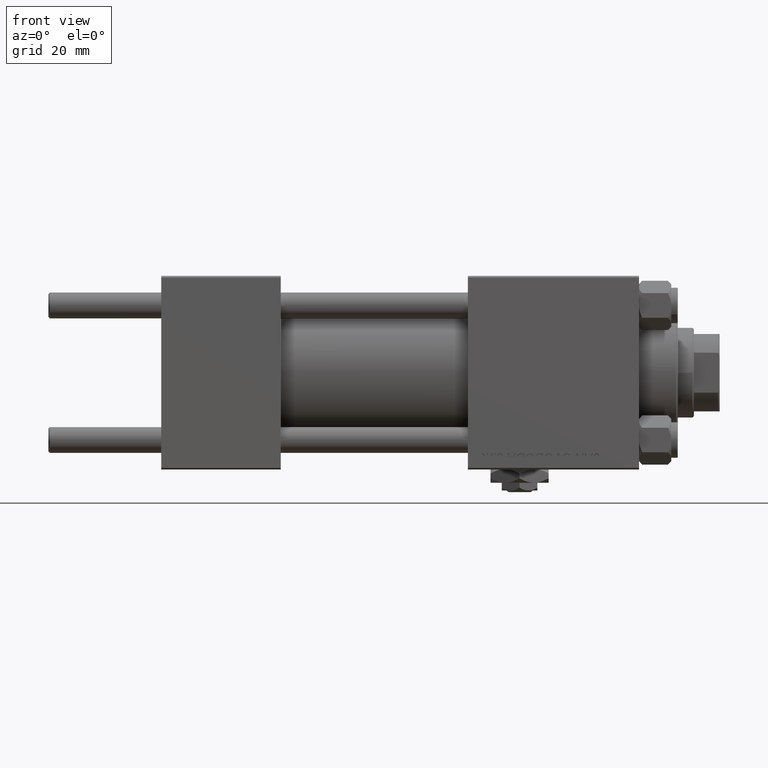
[diagram: clean part render]
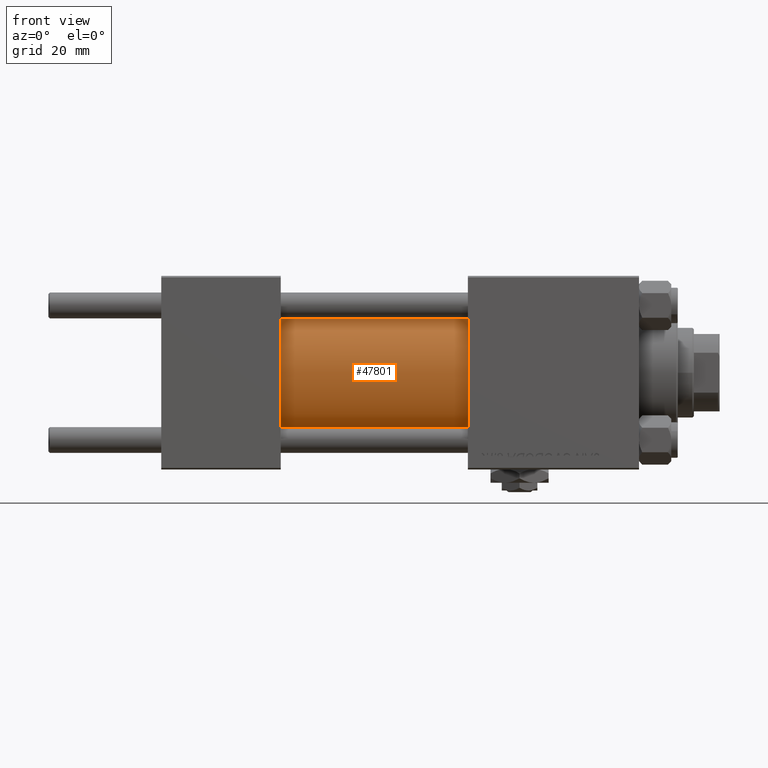
[diagram: same view with one face highlighted and labeled with its STEP entity id]
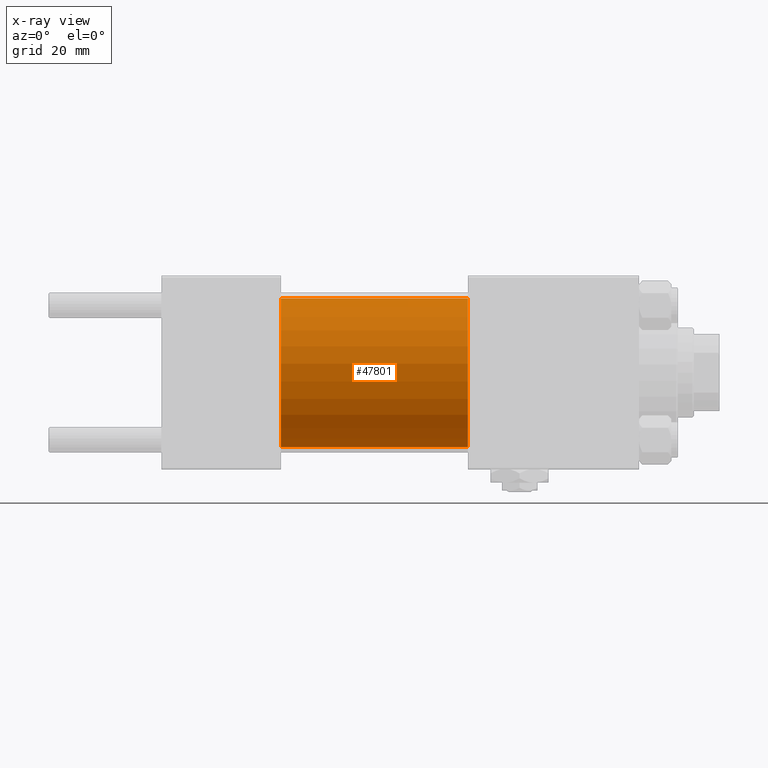
[diagram: x-ray of the same camera — body ghosted, the highlighted face saturated]
A machine part, front view. The second image highlights one B-rep face of the part: STEP entity #47801.
The next image is the same camera in x-ray: the body ghosted, the highlighted face saturated — about 0% of this face is hidden behind the body in this view.
In plain terms, the highlighted cylindrical surface (partial cylindrical patch) has radius 23 mm, axis along (-1, -0, -0).
Its self-contained STEP definition (entity closure, byte-faithful):
#2384 = CYLINDRICAL_SURFACE ( 'NONE', #30726, 23.00000000000000000 ) ;
#2647 = EDGE_LOOP ( 'NONE', ( #41572, #20248, #41165, #35574 ) ) ;
#3155 = DIRECTION ( 'NONE',  ( 0.000000000000000000, 0.000000000000000000, 1.000000000000000000 ) ) ;
#6970 = VERTEX_POINT ( 'NONE', #17798 ) ;
#7068 = DIRECTION ( 'NONE',  ( -1.000000000000000000, -0.000000000000000000, -0.000000000000000000 ) ) ;
#7619 = DIRECTION ( 'NONE',  ( -1.000000000000000000, -0.000000000000000000, -0.000000000000000000 ) ) ;
#8133 = CARTESIAN_POINT ( 'NONE',  ( 95.00000000000000000, 0.000000000000000000, 23.00000000000000000 ) ) ;
#9805 = DIRECTION ( 'NONE',  ( -1.000000000000000000, -0.000000000000000000, -0.000000000000000000 ) ) ;
#10435 = VERTEX_POINT ( 'NONE', #24394 ) ;
#11383 = DIRECTION ( 'NONE',  ( 0.000000000000000000, 0.000000000000000000, -1.000000000000000000 ) ) ;
#12279 = VECTOR ( 'NONE', #9805, 1000.000000000000000 ) ;
#14527 = CIRCLE ( 'NONE', #31970, 23.00000000000000000 ) ;
#15814 = DIRECTION ( 'NONE',  ( 1.000000000000000000, 0.000000000000000000, 0.000000000000000000 ) ) ;
#17798 = CARTESIAN_POINT ( 'NONE',  ( 95.00000000000000000, 2.816687638038911957E-15, -23.00000000000000000 ) ) ;
#18610 = DIRECTION ( 'NONE',  ( 0.000000000000000000, 0.000000000000000000, 1.000000000000000000 ) ) ;
#20248 = ORIENTED_EDGE ( 'NONE', *, *, #31750, .F. ) ;
#21598 = EDGE_CURVE ( 'NONE', #26238, #10435, #43355, .T. ) ;
#23838 = CARTESIAN_POINT ( 'NONE',  ( 37.00000000000000000, 2.816687638038911957E-15, -23.00000000000000000 ) ) ;
#24394 = CARTESIAN_POINT ( 'NONE',  ( 37.00000000000000000, 0.000000000000000000, 23.00000000000000000 ) ) ;
#26238 = VERTEX_POINT ( 'NONE', #37317 ) ;
#26434 = DIRECTION ( 'NONE',  ( 1.000000000000000000, -0.000000000000000000, 0.000000000000000000 ) ) ;
#26895 = FACE_OUTER_BOUND ( 'NONE', #2647, .T. ) ;
#27311 = CIRCLE ( 'NONE', #40646, 23.00000000000000000 ) ;
#29612 = CARTESIAN_POINT ( 'NONE',  ( 95.00000000000000000, 2.816687638038911957E-15, -23.00000000000000000 ) ) ;
#30726 = AXIS2_PLACEMENT_3D ( 'NONE', #42802, #7068, #3155 ) ;
#31750 = EDGE_CURVE ( 'NONE', #26238, #6970, #14527, .T. ) ;
#31970 = AXIS2_PLACEMENT_3D ( 'NONE', #43194, #15814, #11383 ) ;
#32035 = VERTEX_POINT ( 'NONE', #23838 ) ;
#35574 = ORIENTED_EDGE ( 'NONE', *, *, #45545, .T. ) ;
#37317 = CARTESIAN_POINT ( 'NONE',  ( 95.00000000000000000, 0.000000000000000000, 23.00000000000000000 ) ) ;
#37563 = VECTOR ( 'NONE', #7619, 1000.000000000000000 ) ;
#40646 = AXIS2_PLACEMENT_3D ( 'NONE', #50171, #26434, #18610 ) ;
#41165 = ORIENTED_EDGE ( 'NONE', *, *, #21598, .T. ) ;
#41572 = ORIENTED_EDGE ( 'NONE', *, *, #43947, .F. ) ;
#42802 = CARTESIAN_POINT ( 'NONE',  ( 95.00000000000000000, 0.000000000000000000, 0.000000000000000000 ) ) ;
#43194 = CARTESIAN_POINT ( 'NONE',  ( 95.00000000000000000, 0.000000000000000000, 0.000000000000000000 ) ) ;
#43355 = LINE ( 'NONE', #8133, #37563 ) ;
#43947 = EDGE_CURVE ( 'NONE', #6970, #32035, #45011, .T. ) ;
#45011 = LINE ( 'NONE', #29612, #12279 ) ;
#45545 = EDGE_CURVE ( 'NONE', #10435, #32035, #27311, .T. ) ;
#47801 = ADVANCED_FACE ( 'NONE', ( #26895 ), #2384, .T. ) ;
#50171 = CARTESIAN_POINT ( 'NONE',  ( 37.00000000000000000, 0.000000000000000000, 0.000000000000000000 ) ) ;